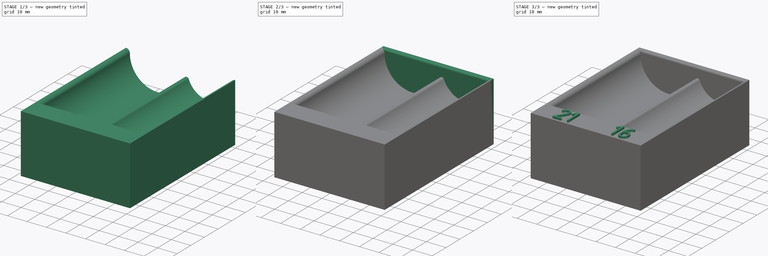
[diagram: build sequence overview — one tinted view per stage of 3, left to right]
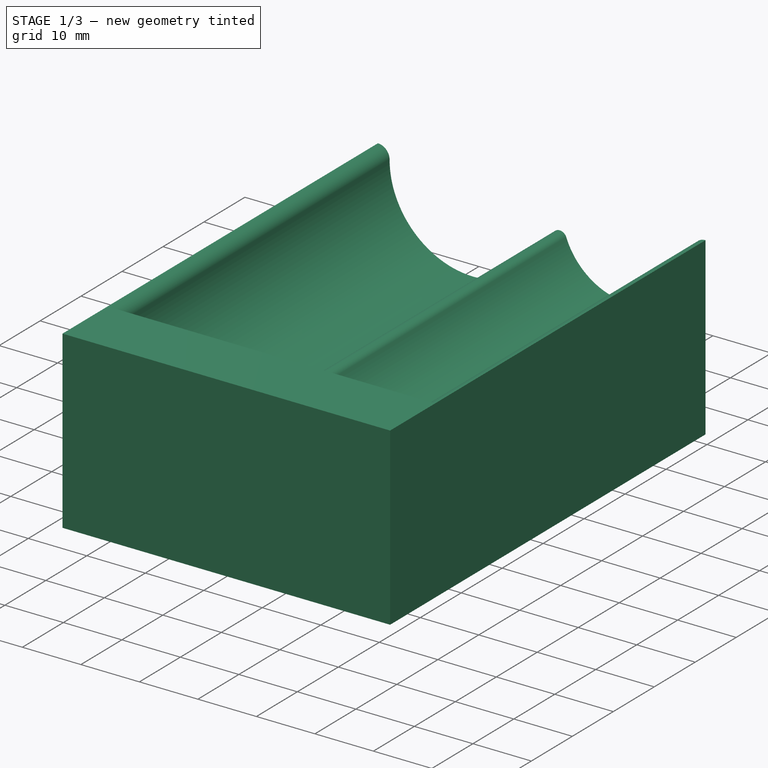
[diagram: stage 1 of 3 — iso view after this stage's code; geometry added in this stage tinted green]
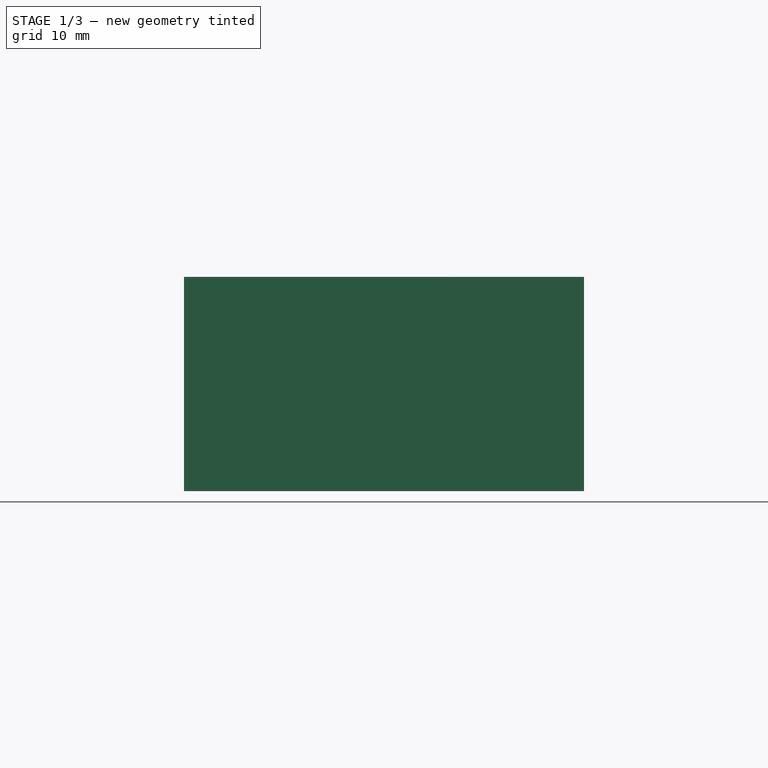
[diagram: stage 1 of 3 — front view after this stage's code; geometry added in this stage tinted green]
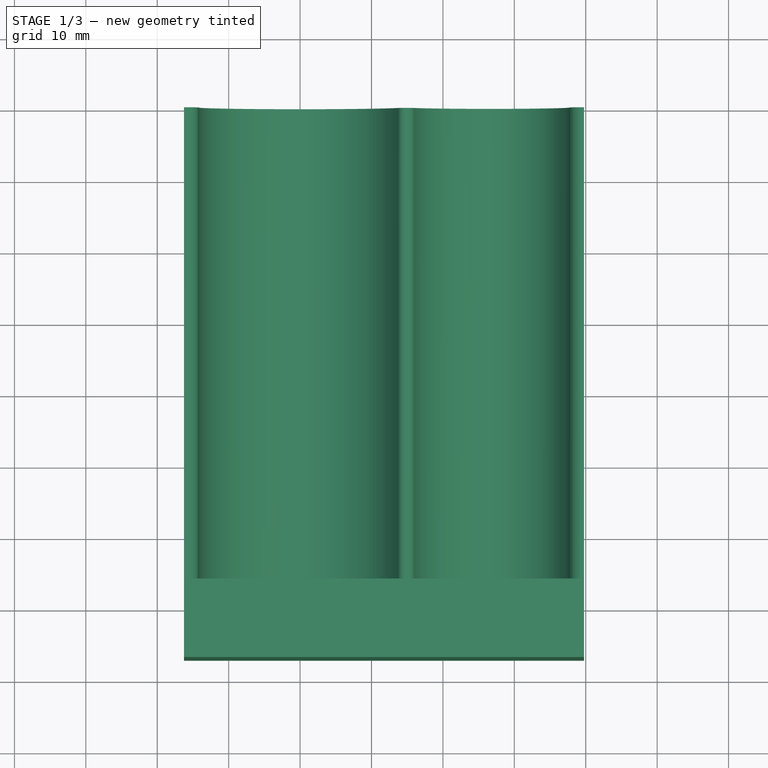
[diagram: stage 1 of 3 — top view after this stage's code; geometry added in this stage tinted green]
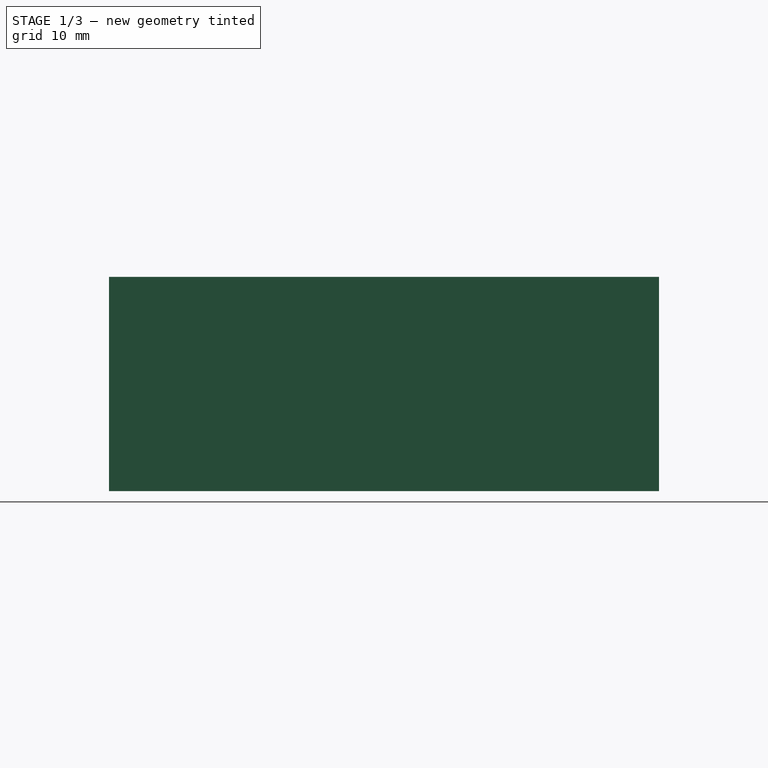
[diagram: stage 1 of 3 — right view after this stage's code; geometry added in this stage tinted green]
FCSTD DOCUMENT  (FreeCAD 1.0R39319 (Git))
Label: spark_plug_socket_holder
License: All rights reserved
LicenseURL: https://en.wikipedia.org/wiki/All_rights_reserved
objects: PartDesign::Pad×5, Sketcher::SketchObject×3, Part::Part2DObjectPython×2, PartDesign::Fillet×1, PartDesign::Body×1
note: 27 computed .brp shape members not serialized (recipe doc carries the construction recipe); baked Part::Feature solids carry a one-line shape summary decoded from their .brp

FEATURE [Sketcher::SketchObject] Sketch
  ArcFitTolerance = 1e-06
  AttachmentSupport = -> [XZ_Plane]
  FullyConstrained = true
  MakeInternals = false
  MapMode = 5
  Placement = pos=(0,0,0) rot=(1,0,0;1.5708rad)
  sketch-geometry (11):
    g0: ArcOfCircle CenterX=0 CenterY=28 CenterZ=0 NormalX=0 NormalY=0 NormalZ=1 AngleXU=0 Radius=14.25 StartAngle=3.14159 EndAngle=5.99866
    g1: ArcOfCircle CenterX=14.8293 CenterY=23.663 CenterZ=0 NormalX=0 NormalY=0 NormalZ=1 AngleXU=0 Radius=1.20049 StartAngle=0.355798 EndAngle=2.85707
    g2: ArcOfCircle CenterX=26.5 CenterY=28 CenterZ=0 NormalX=0 NormalY=0 NormalZ=1 AngleXU=0 Radius=11.25 StartAngle=3.49739 EndAngle=6.28319
    g3: Circle [constr] CenterX=0 CenterY=28 CenterZ=0 NormalX=0 NormalY=0 NormalZ=1 AngleXU=0 Radius=14.25
    g4: Circle [constr] CenterX=26.5 CenterY=28 CenterZ=0 NormalX=0 NormalY=0 NormalZ=1 AngleXU=0 Radius=11.25
    g5: LineSegment [constr] StartX=14.25 StartY=28 StartZ=0 EndX=15.25 EndY=28 EndZ=0
    g6: ArcOfCircle CenterX=-16.25 CenterY=28 CenterZ=0 NormalX=0 NormalY=0 NormalZ=1 AngleXU=0 Radius=2 StartAngle=7e-16 EndAngle=1.5708
    g7: ArcOfCircle CenterX=39.75 CenterY=28 CenterZ=0 NormalX=0 NormalY=0 NormalZ=1 AngleXU=0 Radius=2 StartAngle=1.5708 EndAngle=3.14159
    g8: LineSegment StartX=-16.25 StartY=30 StartZ=0 EndX=-16.25 EndY=0 EndZ=0
    g9: LineSegment StartX=39.75 StartY=30 StartZ=0 EndX=39.75 EndY=0 EndZ=0
    g10: LineSegment StartX=-16.25 StartY=0 StartZ=0 EndX=39.75 EndY=0 EndZ=0
  constraints (33):
    c: PointOnObject(g0,g-2)
    c: Tangent(g1,g0) = 1.5708
    c: Tangent(g2,g1) = 1.5708
    c: Diameter(g0) = 28.5
    c: Diameter(g2) = 22.5
    c: Horizontal(g2,g0)
    c: Horizontal(g0,g2)
    c: Coincident(g3,g0)
    c: Equal(g3,g0)
    c: Coincident(g4,g2)
    c: PointOnObject(g5,g3)
    c: PointOnObject(g5,g4)
    c: Perpendicular(g4,g5)
    c: Perpendicular(g3,g5)
    c: DistanceX(g5,g5) = 1
    c: Equal(g4,g2)
    c: Horizontal(g0,g0)
    c: Radius(g7) = 2
    c: Equal(g7,g6)
    c: Tangent(g6,g0) = 1.5708
    c: Tangent(g7,g2) = 1.5708
    c: PointOnObject(g8,g-1)
    c: Vertical(g8)
    c: PointOnObject(g9,g-1)
    c: Vertical(g9)
    c: Coincident(g10,g8)
    c: Coincident(g10,g9)
    c: DistanceY(g0,g0) = 4
    c: DistanceY(g8,g8) = 30
    c: Coincident(g9,g7)
    c: Perpendicular(g7,g9)
    c: Coincident(g8,g6)
    c: Perpendicular(g6,g8)
FEATURE [PartDesign::Pad] Pad
  Direction = (0,-1,2e-16)
  Length = 66
  Length2 = 10
  Placement = pos=(0,0,0) rot=(1,0,0;1.5708rad)
  Profile = -> Sketch
  ReferenceAxis = -> Sketch [N_Axis]
  Refine = true
  Suppressed = false
  Type = 0
FEATURE [Sketcher::SketchObject] Sketch001
  ArcFitTolerance = 1e-06
  AttachmentSupport = -> [Pad]
  ExternalGeometry = -> [Pad]
  FullyConstrained = true
  MakeInternals = false
  MapMode = 5
  Placement = pos=(0,-66,0) rot=(1,0,0;1.5708rad)
  sketch-geometry (4):
    g0: LineSegment StartX=-16.25 StartY=30 StartZ=0 EndX=-16.25 EndY=1.42e-14 EndZ=0
    g1: LineSegment StartX=-16.25 StartY=1.42e-14 StartZ=0 EndX=39.75 EndY=1.42e-14 EndZ=0
    g2: LineSegment StartX=39.75 StartY=1.42e-14 StartZ=0 EndX=39.75 EndY=30 EndZ=0
    g3: LineSegment StartX=39.75 StartY=30 StartZ=0 EndX=-16.25 EndY=30 EndZ=0
  constraints (10):
    c: Coincident(g0,g1)
    c: Coincident(g1,g2)
    c: Coincident(g2,g3)
    c: Coincident(g3,g0)
    c: Vertical(g0)
    c: Vertical(g2)
    c: Horizontal(g1)
    c: Horizontal(g3)
    c: Coincident(g0,g-3)
    c: Coincident(g1,g-4)
FEATURE [PartDesign::Pad] Pad001
  BaseFeature = -> Pad
  Direction = (0,-1,2e-16)
  Length = 11
  Length2 = 10
  Placement = pos=(0,0,0) rot=(1,0,0;1.5708rad)
  Profile = -> Sketch001
  ReferenceAxis = -> Sketch001 [N_Axis]
  Refine = true
  Suppressed = false
  Type = 0
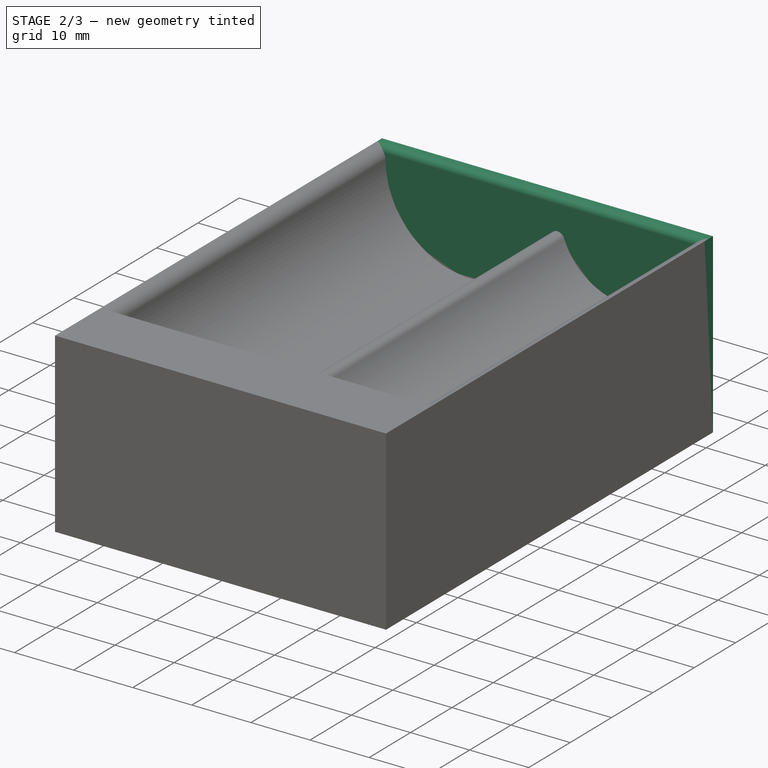
[diagram: stage 2 of 3 — iso view after this stage's code; geometry added in this stage tinted green]
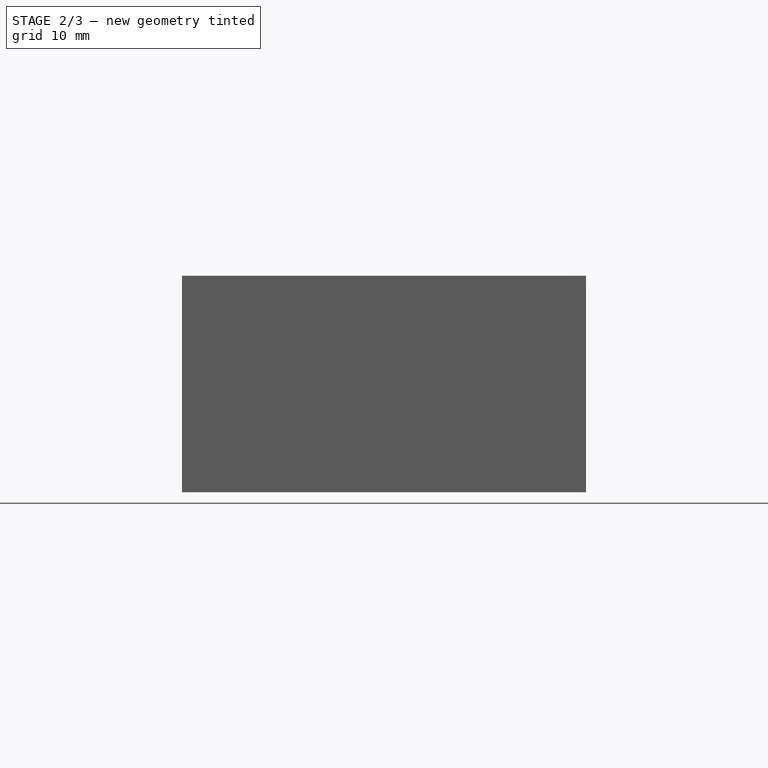
[diagram: stage 2 of 3 — front view after this stage's code; geometry added in this stage tinted green]
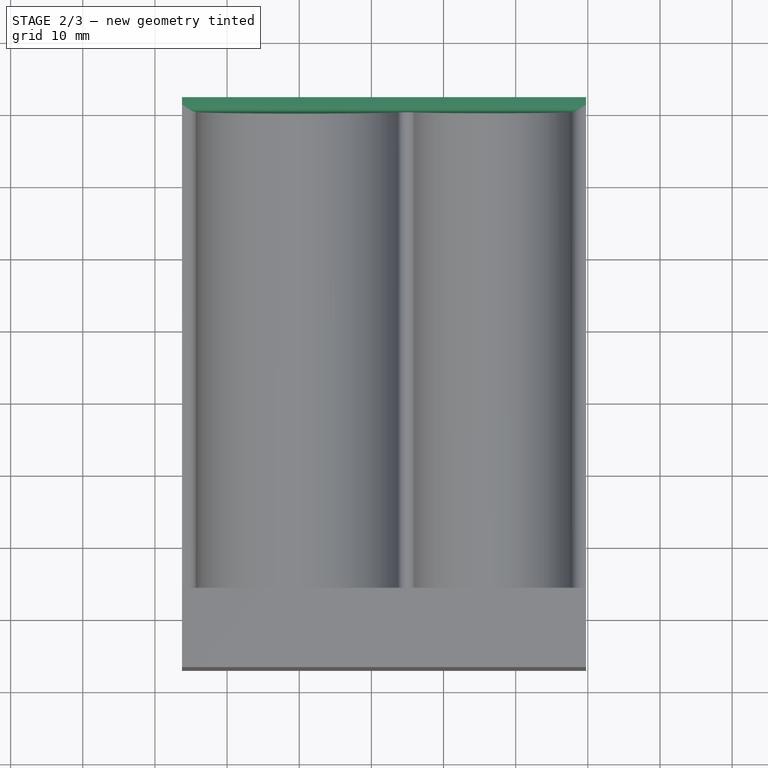
[diagram: stage 2 of 3 — top view after this stage's code; geometry added in this stage tinted green]
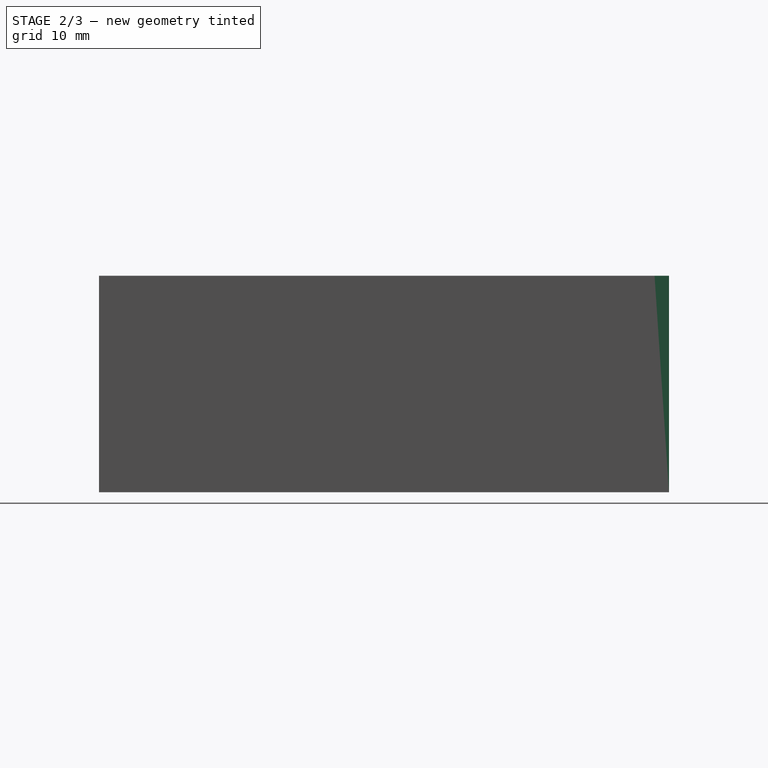
[diagram: stage 2 of 3 — right view after this stage's code; geometry added in this stage tinted green]
FEATURE [Sketcher::SketchObject] Sketch002
  ArcFitTolerance = 1e-06
  AttachmentSupport = -> [Pad001]
  ExternalGeometry = -> [Pad001]
  FullyConstrained = true
  MakeInternals = false
  MapMode = 5
  Placement = pos=(0,2.9e-15,0) rot=(-1,0,0;1.5708rad)
  sketch-geometry (4):
    g0: LineSegment StartX=-16.25 StartY=0 StartZ=0 EndX=-16.25 EndY=-30 EndZ=0
    g1: LineSegment StartX=-16.25 StartY=-30 StartZ=0 EndX=39.75 EndY=-30 EndZ=0
    g2: LineSegment StartX=39.75 StartY=-30 StartZ=0 EndX=39.75 EndY=0 EndZ=0
    g3: LineSegment StartX=39.75 StartY=0 StartZ=0 EndX=-16.25 EndY=0 EndZ=0
  constraints (10):
    c: Coincident(g0,g1)
    c: Coincident(g1,g2)
    c: Coincident(g2,g3)
    c: Coincident(g3,g0)
    c: Vertical(g0)
    c: Vertical(g2)
    c: Horizontal(g1)
    c: Horizontal(g3)
    c: Coincident(g0,g-3)
    c: Coincident(g1,g-4)
FEATURE [PartDesign::Pad] Pad002
  BaseFeature = -> Pad001
  Direction = (0,1,2e-16)
  Length = 2
  Length2 = 10
  Placement = pos=(0,0,0) rot=(1,0,0;1.5708rad)
  Profile = -> Sketch002
  ReferenceAxis = -> Sketch002 [N_Axis]
  Refine = true
  Suppressed = false
  Type = 0
FEATURE [PartDesign::Fillet] Fillet
  Base = -> Pad002 [Edge13]
  BaseFeature = -> Pad002
  Placement = pos=(0,0,0) rot=(1,0,0;1.5708rad)
  Radius = 1
  Refine = true
  SupportTransform = false
  Suppressed = false
  UseAllEdges = false
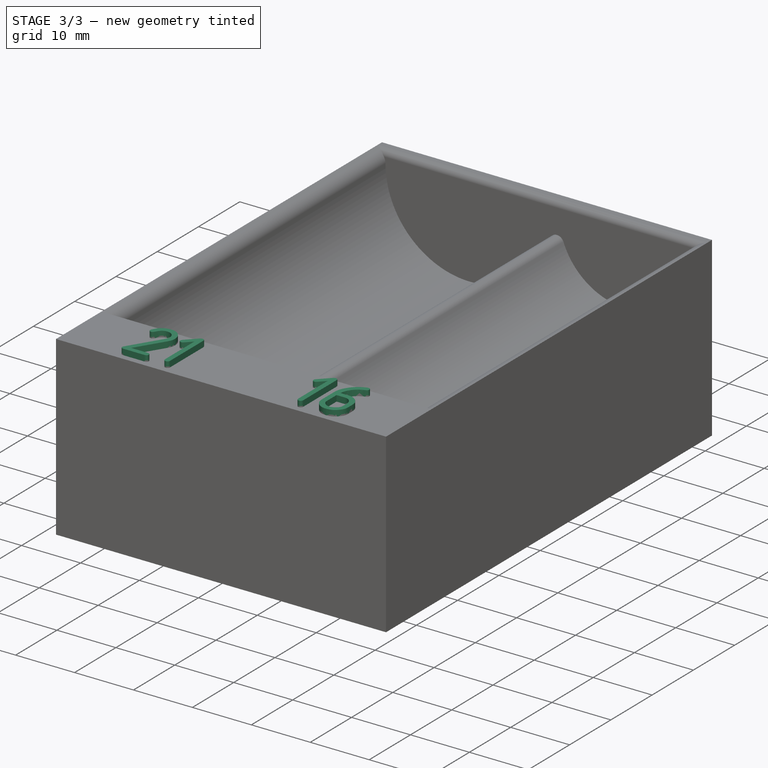
[diagram: stage 3 of 3 — iso view after this stage's code; geometry added in this stage tinted green]
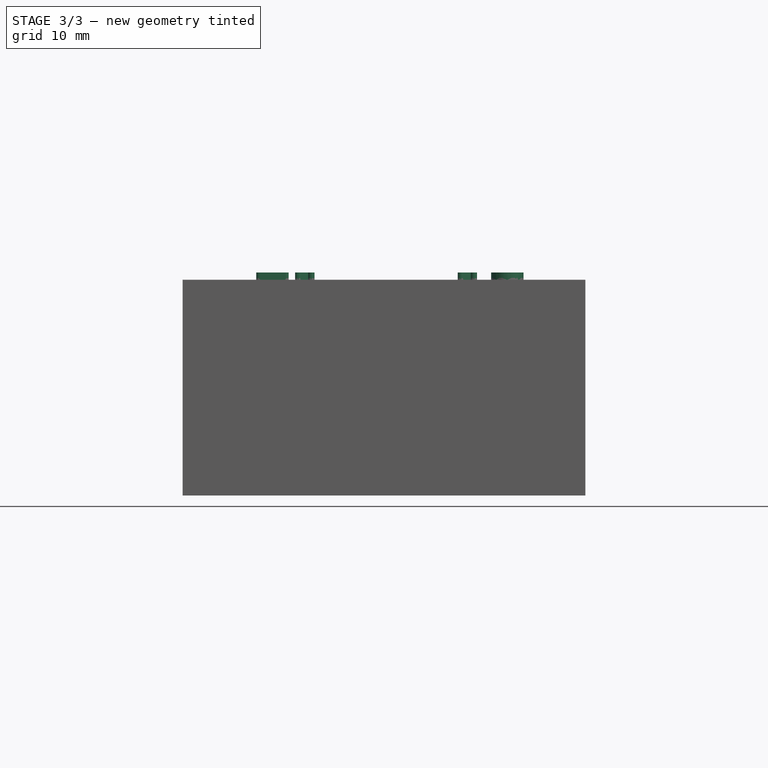
[diagram: stage 3 of 3 — front view after this stage's code; geometry added in this stage tinted green]
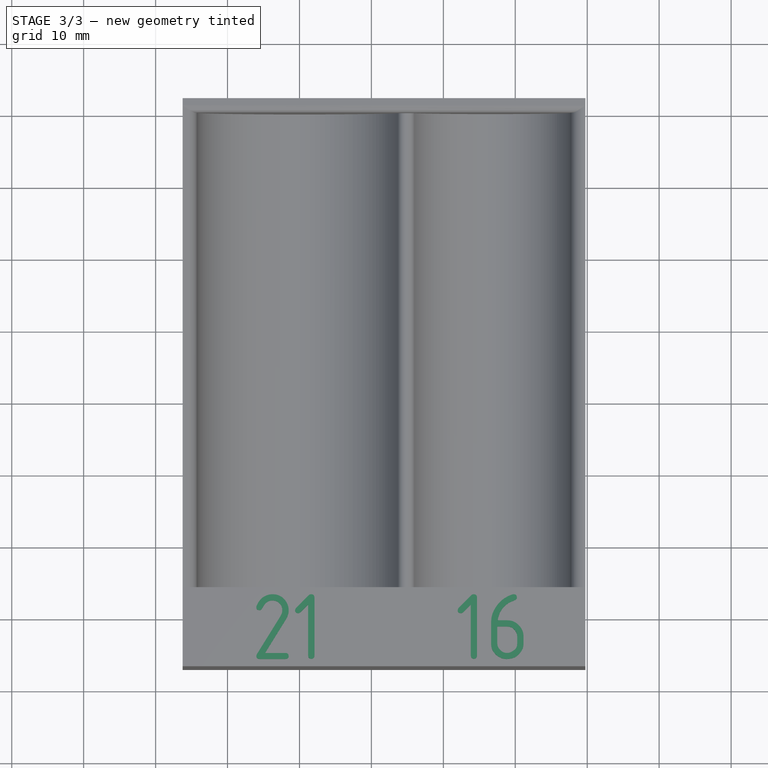
[diagram: stage 3 of 3 — top view after this stage's code; geometry added in this stage tinted green]
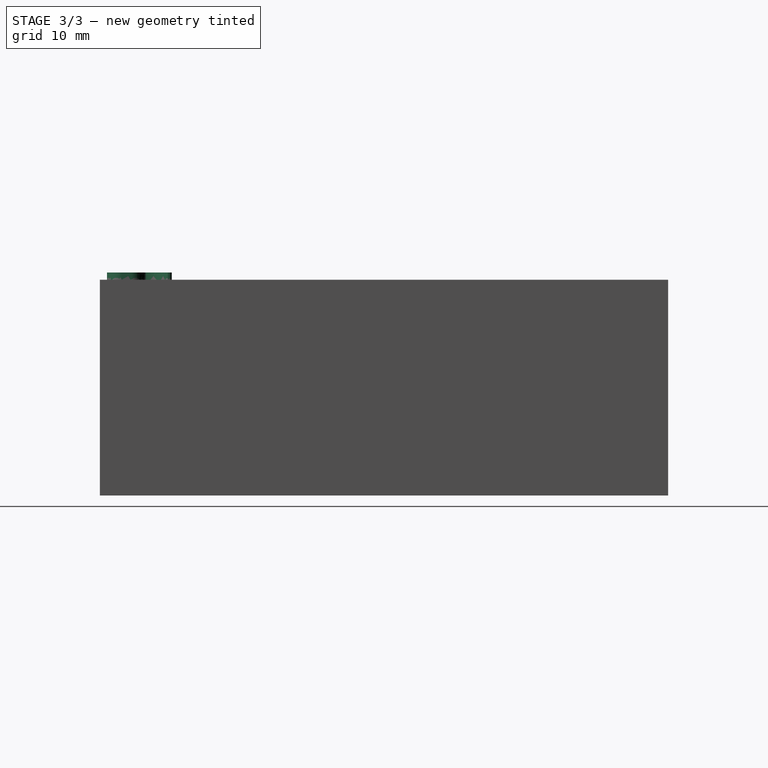
[diagram: stage 3 of 3 — right view after this stage's code; geometry added in this stage tinted green]
FEATURE [Part::Part2DObjectPython] ShapeString  # Draft 2D object (typed FeaturePython)
  AttachmentOffset = pos=(6,76,0) rot=(0,0,1;3.14159rad)
  AttachmentSupport = -> [Fillet]
  FontFile = <userpath>/Downloads/osifont-master/osifont-master/osifont.ttf
  Fuse = false
  Justification = 6
  JustificationReference = 0
  KeepLeftMargin = false
  MakeFace = true
  MapMode = 5
  ObliqueAngle = 0
  Placement = pos=(-6,-76,30) rot=(0,0,1;0rad)
  ScaleToSize = true
  Size = 9
  String = 21
  Tracking = 0
FEATURE [Part::Part2DObjectPython] ShapeString001  # Draft 2D object (typed FeaturePython)
  AttachmentOffset = pos=(-22,76,0) rot=(0,0,1;3.14159rad)
  AttachmentSupport = -> [Fillet]
  FontFile = <userpath>/Downloads/osifont-master/osifont-master/osifont.ttf
  Fuse = false
  Justification = 6
  JustificationReference = 0
  KeepLeftMargin = false
  MakeFace = true
  MapMode = 5
  ObliqueAngle = 0
  Placement = pos=(22,-76,30) rot=(0,0,1;0rad)
  ScaleToSize = true
  Size = 9
  String = 16
  Tracking = 0
FEATURE [PartDesign::Pad] Pad003
  BaseFeature = -> Fillet
  Direction = (0,0,1)
  Length = 1
  Length2 = 10
  Placement = pos=(0,0,0) rot=(1,0,0;1.5708rad)
  Profile = -> ShapeString
  ReferenceAxis = -> ShapeString [N_Axis]
  Refine = true
  Suppressed = false
  Type = 0
FEATURE [PartDesign::Pad] Pad004
  BaseFeature = -> Pad003
  Direction = (0,0,1)
  Length = 1
  Length2 = 10
  Placement = pos=(0,0,0) rot=(1,0,0;1.5708rad)
  Profile = -> ShapeString001
  ReferenceAxis = -> ShapeString001 [N_Axis]
  Refine = true
  Suppressed = false
  Type = 0
FEATURE [PartDesign::Body] Body
  AllowCompound = false
  Group = -> [Sketch,Pad,Sketch001,Pad001,Sketch002,Pad002,Fillet,ShapeString,ShapeString001,Pad003,Pad004]
  Origin = -> Origin
  Tip = -> Pad004
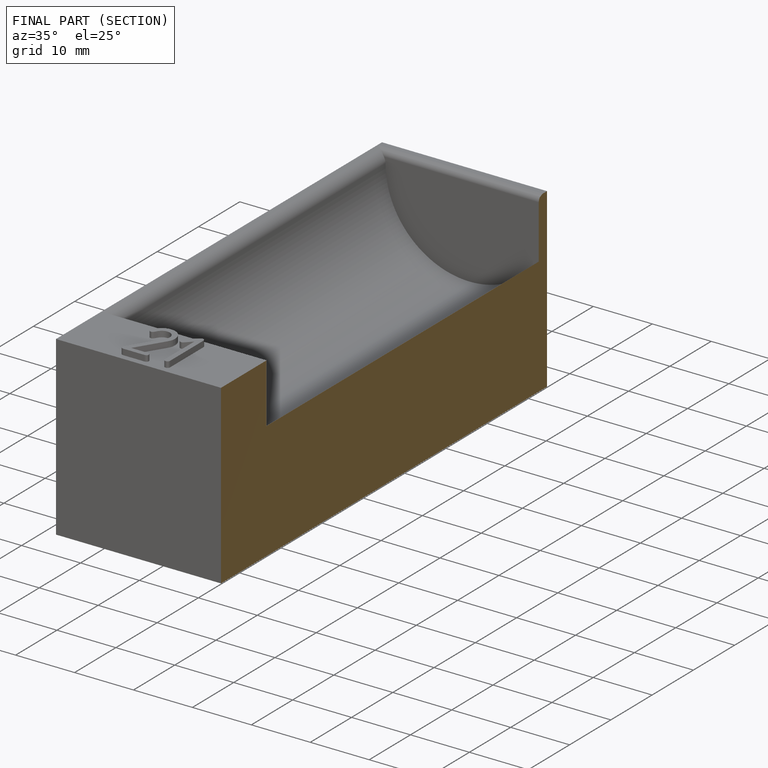
[diagram: finished part — half-section view (interior)]
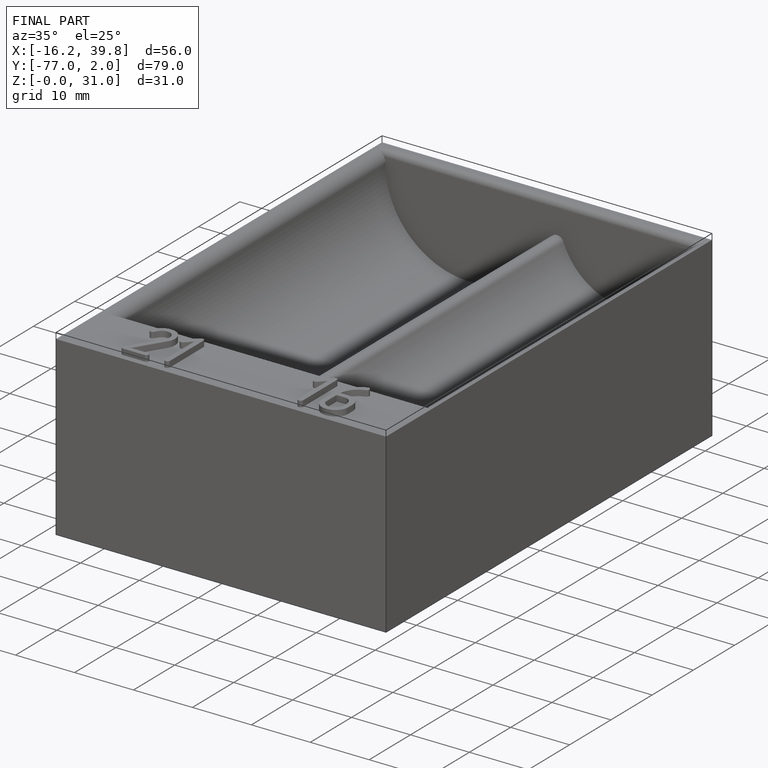
[diagram: finished part — iso view with bounding-box wireframe]
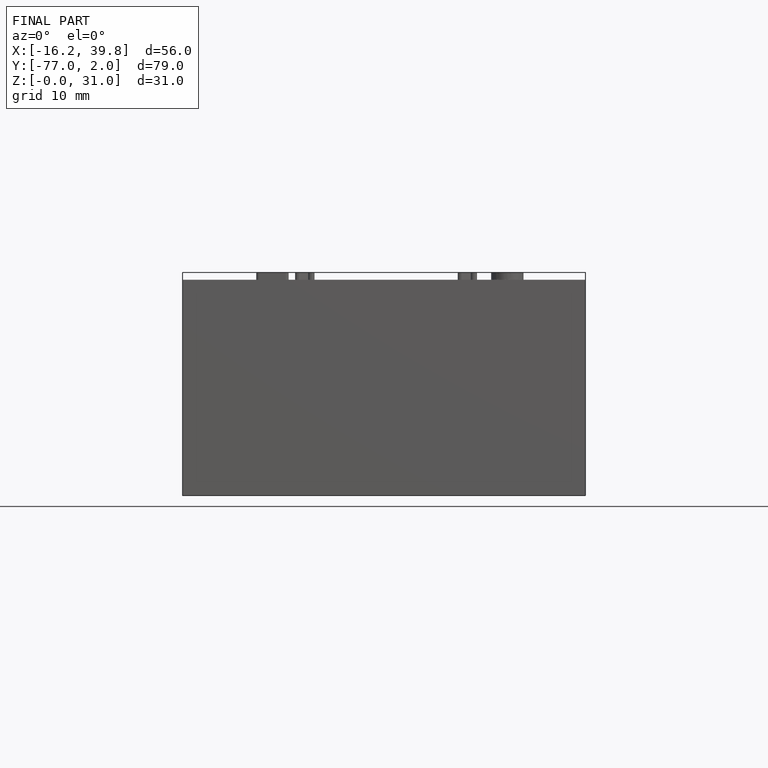
[diagram: finished part — front view with bounding-box wireframe]
